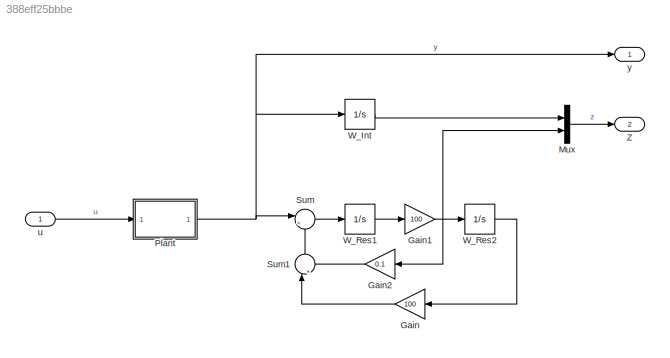
MODEL slx_388eff25bbbe
KIND model
CONFIG AbsTol = auto
CONFIG EnableMultiTasking = off
CONFIG FixedStep = auto
CONFIG MaxStep = 0.001
CONFIG MinStep = auto
CONFIG RelTol = 1e-3
CONFIG SampleTimeConstraint = Unconstrained
CONFIG SolverName = VariableStepAuto
CONFIG StartTime = 0.0
CONFIG StopTime = 50
WORKSPACE source: mxarray member
WORKSPACE f_r = [100 100]
WORKSPACE j = 1
BLOCK [Gain] Gain
  Gain = 100
BLOCK [Gain] Gain1
  Gain = 100
BLOCK [Gain] Gain2
  Gain = 0.1
BLOCK [Mux] Mux
  DisplayOption = bar
  Inputs = 2
  Ports = [2, 1]
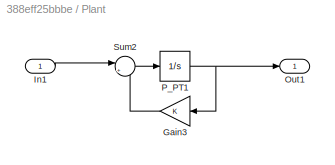
BLOCK [SubSystem] Plant
  Ports = [1, 1]
  RequestExecContextInheritance = off
BLOCK [Gain] Plant/Gain3
BLOCK [Inport] Plant/In1
BLOCK [Outport] Plant/Out1
BLOCK [Integrator] Plant/P_PT1
  Ports = [1, 1]
BLOCK [Sum] Plant/Sum2
  Inputs = |+-
  Ports = [2, 1]
BLOCK [Sum] Sum
  Inputs = |+-
  Ports = [2, 1]
BLOCK [Sum] Sum1
  Inputs = |++
  NameLocation = right
  Ports = [2, 1]
BLOCK [Integrator] W_Int
  Ports = [1, 1]
BLOCK [Integrator] W_Res1
  Ports = [1, 1]
BLOCK [Integrator] W_Res2
  Ports = [1, 1]
BLOCK [Outport] Z
  Port = 2
BLOCK [Inport] u
BLOCK [Outport] y
NET Gain1:1 -> Gain2:1, Mux:2, W_Res2:1
LINE Gain2:1 -> Sum1:2
LINE Gain:1 -> Sum1:1
LINE Mux:1 -> Z:1
LINE Plant/Gain3:1 -> Plant/Sum2:2
LINE Plant/In1:1 -> Plant/Sum2:1
NET Plant/P_PT1:1 -> Plant/Gain3:1, Plant/Out1:1
LINE Plant/Sum2:1 -> Plant/P_PT1:1
NET Plant:1 -> Sum:1, W_Int:1, y:1
LINE Sum1:1 -> Sum:2
LINE Sum:1 -> W_Res1:1
LINE W_Int:1 -> Mux:1
LINE W_Res1:1 -> Gain1:1
LINE W_Res2:1 -> Gain:1
LINE u:1 -> Plant:1
note: NET lines group one-source signal fan-out (src -> all destinations, sorted); 1:1 wires keep LINE
